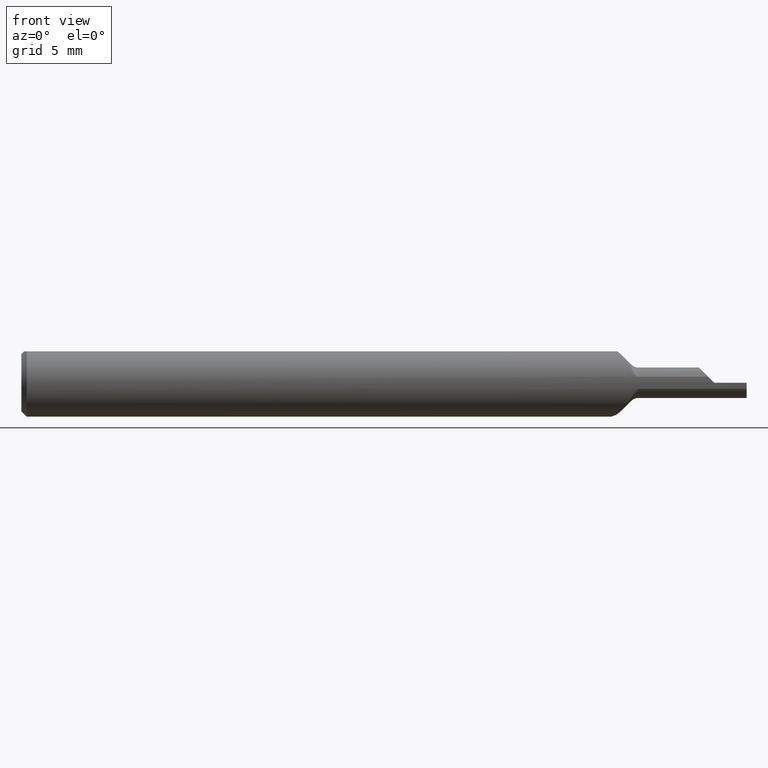
[diagram: clean part render]
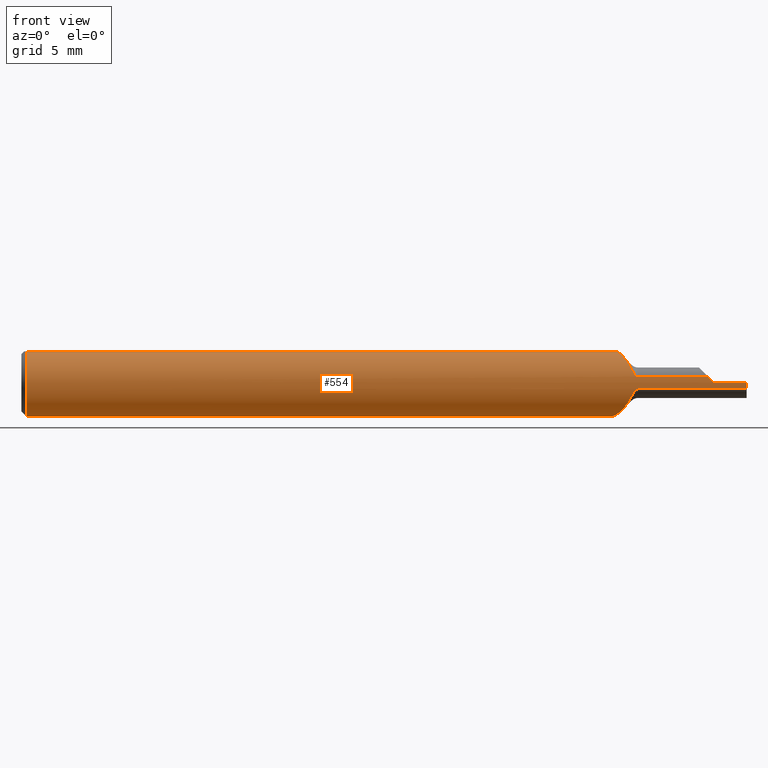
[diagram: same view with one face highlighted and labeled with its STEP entity id]
A machine part, front view. The second image highlights one B-rep face of the part: STEP entity #554.
In plain terms, the highlighted cylindrical surface (edge-blend (fillet) strip) has radius 2.3774 mm, axis along (-1, -0, -0).
Its self-contained STEP definition (entity closure, byte-faithful):
#1 = CARTESIAN_POINT ( 'NONE',  ( 1.893546287756235014, -0.09207014925373133152, 0.01685371224376497334 ) ) ;
#24 = DIRECTION ( 'NONE',  ( 0.000000000000000000, 0.000000000000000000, 1.000000000000000000 ) ) ;
#30 = B_SPLINE_CURVE_WITH_KNOTS ( 'NONE', 3,
 ( #691, #1008, #619, #616, #772, #695 ),
 .UNSPECIFIED., .F., .F.,
 ( 4, 2, 4 ),
 ( 0.0006012079309635458150, 0.001340060975339837663, 0.002078914019716129186 ),
 .UNSPECIFIED. ) ;
#34 = CARTESIAN_POINT ( 'NONE',  ( 1.684594016849698450, -0.08759575698325013093, -0.03327896902706448806 ) ) ;
#36 = VECTOR ( 'NONE', #503, 39.37007874015748143 ) ;
#57 = CARTESIAN_POINT ( 'NONE',  ( 1.910000000000000142, -0.09359914529524315796, 0.0004000000000000088012 ) ) ;
#61 = CARTESIAN_POINT ( 'NONE',  ( 1.643532016763719739, -0.03551619348969495271, 0.08659999999999998255 ) ) ;
#63 = VERTEX_POINT ( 'NONE', #367 ) ;
#64 = CARTESIAN_POINT ( 'NONE',  ( 1.592686412966955123, 0.07249166138048264429, 0.05959038732245774267 ) ) ;
#70 = CARTESIAN_POINT ( 'NONE',  ( 1.655266695626996576, -0.05360000000000007120, -0.07673330437300346363 ) ) ;
#73 = ORIENTED_EDGE ( 'NONE', *, *, #531, .T. ) ;
#78 = ORIENTED_EDGE ( 'NONE', *, *, #579, .F. ) ;
#84 = B_SPLINE_CURVE_WITH_KNOTS ( 'NONE', 3,
 ( #754, #34, #105, #353, #431, #749, #348, #673, #679, #687 ),
 .UNSPECIFIED., .F., .F.,
 ( 4, 2, 2, 2, 4 ),
 ( 4.336808689942017736E-19, 0.0003644527873160435501, 0.0005466791809740589826, 0.0006377923778030668072, 0.0007289055746320745235 ),
 .UNSPECIFIED. ) ;
#85 = DIRECTION ( 'NONE',  ( 1.000000000000000000, -0.000000000000000000, -0.000000000000000000 ) ) ;
#88 = ORIENTED_EDGE ( 'NONE', *, *, #237, .T. ) ;
#91 = ORIENTED_EDGE ( 'NONE', *, *, #795, .T. ) ;
#105 = CARTESIAN_POINT ( 'NONE',  ( 1.686806040240315108, -0.08899355740419850891, -0.02927285501734320020 ) ) ;
#107 = EDGE_CURVE ( 'NONE', #352, #949, #30, .T. ) ;
#116 = AXIS2_PLACEMENT_3D ( 'NONE', #713, #85, #310 ) ;
#117 = CARTESIAN_POINT ( 'NONE',  ( 1.822500000000000009, -0.09207014925373130376, -0.01685371224376508437 ) ) ;
#127 = DIRECTION ( 'NONE',  ( 0.000000000000000000, 0.000000000000000000, -1.000000000000000000 ) ) ;
#130 = CARTESIAN_POINT ( 'NONE',  ( 1.588748490882201159, 0.08288450723913580453, -0.04401287222825069068 ) ) ;
#136 = CARTESIAN_POINT ( 'NONE',  ( 1.605145747846598248, 0.04152393587091608024, 0.08413611846597424115 ) ) ;
#163 = CARTESIAN_POINT ( 'NONE',  ( 1.700355339059327342, -0.09207014925373130376, 0.01685371224376508437 ) ) ;
#165 = ORIENTED_EDGE ( 'NONE', *, *, #232, .T. ) ;
#173 = LINE ( 'NONE', #1018, #36 ) ;
#177 = CARTESIAN_POINT ( 'NONE',  ( 1.647441566857823281, -0.04196899222461395601, 0.08395359297438403923 ) ) ;
#182 = CARTESIAN_POINT ( 'NONE',  ( 1.697900363525313594, -0.09207014925373133152, 0.01685371224376509131 ) ) ;
#195 = CARTESIAN_POINT ( 'NONE',  ( 1.587619877663365875, 0.08592338530824539244, -0.03774812721615193600 ) ) ;
#198 = VERTEX_POINT ( 'NONE', #1 ) ;
#200 = CARTESIAN_POINT ( 'NONE',  ( 1.588468871594833187, 0.08363337984157995231, 0.04257809132454690171 ) ) ;
#202 = B_SPLINE_CURVE_WITH_KNOTS ( 'NONE', 3,
 ( #693, #854, #282, #1003, #547, #708, #935, #765, #277, #612, #468, #212, #780, #130, #195, #784, #289, #930, #605, #849, #447, #703, #200, #622, #64, #384, #939, #923, #136, #845 ),
 .UNSPECIFIED., .F., .F.,
 ( 4, 2, 2, 2, 2, 2, 2, 2, 2, 2, 2, 2, 2, 2, 4 ),
 ( 0.002058782231661807245, 0.003113147971076603814, 0.004167513710491399515, 0.004694696580198798666, 0.005221879449906196083, 0.005749062319613593500, 0.006276245189320990917, 0.006803428059028388333, 0.007330610928735785750, 0.007857793798443183167, 0.008384976668150578849, 0.008912159537857976266, 0.009439342407565375417, 0.009966525277272771099, 0.01049370814698016852 ),
 .UNSPECIFIED. ) ;
#212 = CARTESIAN_POINT ( 'NONE',  ( 1.593061454468120752, 0.07151733861755629751, -0.06075228721337560395 ) ) ;
#225 = VERTEX_POINT ( 'NONE', #163 ) ;
#232 = EDGE_CURVE ( 'NONE', #63, #567, #701, .T. ) ;
#237 = EDGE_CURVE ( 'NONE', #897, #1019, #173, .T. ) ;
#245 = CARTESIAN_POINT ( 'NONE',  ( 1.660085428403860419, -0.06049845688170251562, -0.07191457159613975914 ) ) ;
#255 = VERTEX_POINT ( 'NONE', #327 ) ;
#259 = EDGE_CURVE ( 'NONE', #455, #198, #676, .T. ) ;
#264 = CARTESIAN_POINT ( 'NONE',  ( 1.700355339059327342, -0.09207014925373130376, 0.01685371224376508437 ) ) ;
#273 = EDGE_CURVE ( 'NONE', #225, #949, #965, .T. ) ;
#277 = CARTESIAN_POINT ( 'NONE',  ( 1.603233516757745392, 0.04610023755995056038, -0.08171951638444602262 ) ) ;
#282 = CARTESIAN_POINT ( 'NONE',  ( 1.641505337636526507, -0.03252922832486425386, -0.08859576026076432242 ) ) ;
#289 = CARTESIAN_POINT ( 'NONE',  ( 1.585347330751994743, 0.09209881956665141867, -0.01808940311156598604 ) ) ;
#301 = LINE ( 'NONE', #628, #609 ) ;
#307 = EDGE_CURVE ( 'NONE', #897, #352, #433, .T. ) ;
#308 = VERTEX_POINT ( 'NONE', #606 ) ;
#310 = DIRECTION ( 'NONE',  ( 0.000000000000000000, 0.000000000000000000, -1.000000000000000000 ) ) ;
#322 = CARTESIAN_POINT ( 'NONE',  ( 1.682677669529663911, -0.08583234810611023446, -0.03733320262971877995 ) ) ;
#327 = CARTESIAN_POINT ( 'NONE',  ( 1.682677669529663911, -0.08583234810611023446, -0.03733320262971877995 ) ) ;
#339 = EDGE_CURVE ( 'NONE', #1019, #742, #843, .T. ) ;
#344 = CARTESIAN_POINT ( 'NONE',  ( 1.651348737428021352, -0.04799108434696518904, 0.08065126257197871573 ) ) ;
#348 = CARTESIAN_POINT ( 'NONE',  ( 1.695854291740993336, -0.09176656375261060816, -0.01844507552722184779 ) ) ;
#350 = CARTESIAN_POINT ( 'NONE',  ( 0.01499999999999997689, 0.000000000000000000, 0.000000000000000000 ) ) ;
#352 = VERTEX_POINT ( 'NONE', #985 ) ;
#353 = CARTESIAN_POINT ( 'NONE',  ( 1.690863312650912276, -0.09061429882484307863, -0.02353629481380503652 ) ) ;
#359 = DIRECTION ( 'NONE',  ( -1.000000000000000000, -0.000000000000000000, -0.000000000000000000 ) ) ;
#363 = ORIENTED_EDGE ( 'NONE', *, *, #107, .F. ) ;
#365 = DIRECTION ( 'NONE',  ( 1.000000000000000000, 0.000000000000000000, 0.000000000000000000 ) ) ;
#367 = CARTESIAN_POINT ( 'NONE',  ( 2.000000000000000000, -0.09359999999999989162, -6.429183357567480113E-17 ) ) ;
#384 = CARTESIAN_POINT ( 'NONE',  ( 1.596291649173444460, 0.06324241653019845033, 0.06932857983807230728 ) ) ;
#385 = EDGE_CURVE ( 'NONE', #715, #308, #522, .T. ) ;
#387 = CARTESIAN_POINT ( 'NONE',  ( 1.607737149790860132, 0.03551619348973097251, 0.08659999999999998255 ) ) ;
#391 = CARTESIAN_POINT ( 'NONE',  ( 2.000000000000000000, 0.000000000000000000, 0.000000000000000000 ) ) ;
#399 = CARTESIAN_POINT ( 'NONE',  ( 1.655266695626996576, -0.05360000000000007120, -0.07673330437300346363 ) ) ;
#401 = CARTESIAN_POINT ( 'NONE',  ( 2.000000000000000000, -0.09360000000000001652, -6.429183357567480113E-17 ) ) ;
#402 = CIRCLE ( 'NONE', #823, 0.09360000000000001652 ) ;
#409 = DIRECTION ( 'NONE',  ( 1.000000000000000000, 0.000000000000000000, 0.000000000000000000 ) ) ;
#415 = CARTESIAN_POINT ( 'NONE',  ( 1.910000000000000142, -0.09359914529524315796, 0.0004000000000000088012 ) ) ;
#421 = CARTESIAN_POINT ( 'NONE',  ( 1.692332920637297455, -0.09107359152556034065, 0.02166472413359333063 ) ) ;
#425 = AXIS2_PLACEMENT_3D ( 'NONE', #350, #824, #979 ) ;
#426 = CARTESIAN_POINT ( 'NONE',  ( 0.01499999999999997689, 0.03551619348973089618, 0.08659999999999998255 ) ) ;
#428 = CARTESIAN_POINT ( 'NONE',  ( 1.682677669529666131, -0.08583234810610713972, 0.03733320262972479597 ) ) ;
#431 = CARTESIAN_POINT ( 'NONE',  ( 1.692339807999357459, -0.09107598363432312105, -0.02165504116196197495 ) ) ;
#433 = B_SPLINE_CURVE_WITH_KNOTS ( 'NONE', 3,
 ( #750, #177, #344, #587 ),
 .UNSPECIFIED., .F., .F.,
 ( 4, 4 ),
 ( 5.958275938029966699E-07, 0.0006012079309635458150 ),
 .UNSPECIFIED. ) ;
#443 = DIRECTION ( 'NONE',  ( -1.000000000000000000, -0.000000000000000000, -0.000000000000000000 ) ) ;
#447 = CARTESIAN_POINT ( 'NONE',  ( 1.585777751289731530, 0.09091771725228045553, 0.02327984984785655409 ) ) ;
#452 = EDGE_CURVE ( 'NONE', #63, #715, #460, .T. ) ;
#455 = VERTEX_POINT ( 'NONE', #57 ) ;
#460 = CIRCLE ( 'NONE', #909, 0.09360000000000001652 ) ;
#468 = CARTESIAN_POINT ( 'NONE',  ( 1.596716989839071399, 0.06216634424897091865, -0.07029164792002763618 ) ) ;
#470 = VERTEX_POINT ( 'NONE', #387 ) ;
#473 = CARTESIAN_POINT ( 'NONE',  ( 1.664973166025442763, -0.06681938926357956776, -0.06609723623005306359 ) ) ;
#483 = ORIENTED_EDGE ( 'NONE', *, *, #385, .F. ) ;
#485 = CARTESIAN_POINT ( 'NONE',  ( 1.910000000000000142, -0.09359999999999998876, -6.429183357567478880E-17 ) ) ;
#490 = LINE ( 'NONE', #956, #707 ) ;
#503 = DIRECTION ( 'NONE',  ( -1.000000000000000000, -0.000000000000000000, -0.000000000000000000 ) ) ;
#522 = LINE ( 'NONE', #117, #1041 ) ;
#531 = EDGE_CURVE ( 'NONE', #727, #470, #301, .T. ) ;
#532 = ORIENTED_EDGE ( 'NONE', *, *, #273, .T. ) ;
#547 = CARTESIAN_POINT ( 'NONE',  ( 1.622144613202565422, 0.003747197657370836439, -0.09435565053858832596 ) ) ;
#549 = ORIENTED_EDGE ( 'NONE', *, *, #821, .T. ) ;
#554 = ADVANCED_FACE ( 'NONE', ( #570 ), #717, .T. ) ;
#556 = CIRCLE ( 'NONE', #116, 0.09360000000000001652 ) ;
#561 = CARTESIAN_POINT ( 'NONE',  ( 0.01499999999999997689, -0.03551619348973089618, 0.08659999999999998255 ) ) ;
#567 = VERTEX_POINT ( 'NONE', #485 ) ;
#569 = EDGE_CURVE ( 'NONE', #742, #727, #556, .T. ) ;
#570 = FACE_OUTER_BOUND ( 'NONE', #885, .T. ) ;
#579 = EDGE_CURVE ( 'NONE', #255, #922, #1007, .T. ) ;
#580 = VECTOR ( 'NONE', #957, 39.37007874015748143 ) ;
#587 = CARTESIAN_POINT ( 'NONE',  ( 1.655266695626996576, -0.05360000000000007120, 0.07673330437300346363 ) ) ;
#596 = CARTESIAN_POINT ( 'NONE',  ( 1.910000000000000142, 0.000000000000000000, 0.000000000000000000 ) ) ;
#598 = CARTESIAN_POINT ( 'NONE',  ( 1.893546287756235014, -0.09207014925373133152, 0.01685371224376497334 ) ) ;
#605 = CARTESIAN_POINT ( 'NONE',  ( 1.584720111197745140, 0.09381884038610417698, 0.002633421613979642674 ) ) ;
#606 = CARTESIAN_POINT ( 'NONE',  ( 1.700355339059327342, -0.09207014925373130376, -0.01685371224376508437 ) ) ;
#609 = VECTOR ( 'NONE', #943, 39.37007874015748143 ) ;
#612 = CARTESIAN_POINT ( 'NONE',  ( 1.598787511741458056, 0.05696553440187637068, -0.07455359918542001085 ) ) ;
#616 = CARTESIAN_POINT ( 'NONE',  ( 1.674310424756260574, -0.07768217733058858931, 0.05290665824840045522 ) ) ;
#619 = CARTESIAN_POINT ( 'NONE',  ( 1.664994524017805899, -0.06684592061606128843, 0.06607009958237755609 ) ) ;
#622 = CARTESIAN_POINT ( 'NONE',  ( 1.591127068158568081, 0.07658112335221455014, 0.05424728224234229290 ) ) ;
#625 = ORIENTED_EDGE ( 'NONE', *, *, #569, .T. ) ;
#628 = CARTESIAN_POINT ( 'NONE',  ( 2.000000000000000000, 0.03551619348973089618, 0.08659999999999998255 ) ) ;
#633 = EDGE_CURVE ( 'NONE', #225, #198, #490, .T. ) ;
#642 = DIRECTION ( 'NONE',  ( 0.000000000000000000, 0.000000000000000000, 1.000000000000000000 ) ) ;
#672 = ORIENTED_EDGE ( 'NONE', *, *, #307, .F. ) ;
#673 = CARTESIAN_POINT ( 'NONE',  ( 1.697943722477580408, -0.09199641880623858625, -0.01726215400794502836 ) ) ;
#676 =( BOUNDED_CURVE ( )  B_SPLINE_CURVE ( 3, ( #415, #734, #1000, #598 ),
 .UNSPECIFIED., .F., .F. ) 
 B_SPLINE_CURVE_WITH_KNOTS ( ( 4, 4 ),
 ( 4.716662497666021636, 4.893437473578364560 ),
 .UNSPECIFIED. ) 
 CURVE ( )  GEOMETRIC_REPRESENTATION_ITEM ( )  RATIONAL_B_SPLINE_CURVE ( ( 1.000000000000000000, 0.9973975789045512741, 0.9973975789045512741, 1.000000000000000000 ) ) 
 REPRESENTATION_ITEM ( '' )  );
#679 = CARTESIAN_POINT ( 'NONE',  ( 1.699129694698308990, -0.09207014925373525893, -0.01685371224381187333 ) ) ;
#687 = CARTESIAN_POINT ( 'NONE',  ( 1.700355339059327342, -0.09207014925373130376, -0.01685371224376508437 ) ) ;
#691 = CARTESIAN_POINT ( 'NONE',  ( 1.655266695626996576, -0.05360000000000007120, 0.07673330437300346363 ) ) ;
#693 = CARTESIAN_POINT ( 'NONE',  ( 1.655266695626996576, -0.05360000000000007120, -0.07673330437300346363 ) ) ;
#695 = CARTESIAN_POINT ( 'NONE',  ( 1.682677669529666131, -0.08583234810610713972, 0.03733320262972479597 ) ) ;
#701 = LINE ( 'NONE', #401, #580 ) ;
#703 = CARTESIAN_POINT ( 'NONE',  ( 1.587386139853655509, 0.08655412143640968392, 0.03628176927432850973 ) ) ;
#707 = VECTOR ( 'NONE', #409, 39.37007874015748143 ) ;
#708 = CARTESIAN_POINT ( 'NONE',  ( 1.613581935819068613, 0.02220868768165350574, -0.09114138336216801028 ) ) ;
#713 = CARTESIAN_POINT ( 'NONE',  ( 0.01499999999999997689, 0.000000000000000000, 0.000000000000000000 ) ) ;
#715 = VERTEX_POINT ( 'NONE', #743 ) ;
#717 = CYLINDRICAL_SURFACE ( 'NONE', #756, 0.09360000000000001652 ) ;
#727 = VERTEX_POINT ( 'NONE', #426 ) ;
#734 = CARTESIAN_POINT ( 'NONE',  ( 1.904477477659879625, -0.09357554455691269313, 0.005922522340120369745 ) ) ;
#742 = VERTEX_POINT ( 'NONE', #919 ) ;
#743 = CARTESIAN_POINT ( 'NONE',  ( 2.000000000000000000, -0.09207014925373137315, -0.01685371224376502886 ) ) ;
#749 = CARTESIAN_POINT ( 'NONE',  ( 1.694934352833174396, -0.09161422343003015889, -0.01919630084115139454 ) ) ;
#750 = CARTESIAN_POINT ( 'NONE',  ( 1.643532016763719739, -0.03551619348969495271, 0.08659999999999998255 ) ) ;
#754 = CARTESIAN_POINT ( 'NONE',  ( 1.682677669529663911, -0.08583234810611023446, -0.03733320262971877995 ) ) ;
#756 = AXIS2_PLACEMENT_3D ( 'NONE', #391, #1033, #642 ) ;
#765 = CARTESIAN_POINT ( 'NONE',  ( 1.605632438950439722, 0.04037388648616935943, -0.08469102550447793476 ) ) ;
#772 = CARTESIAN_POINT ( 'NONE',  ( 1.678765213081543139, -0.08223213411571288212, 0.04561041429958455351 ) ) ;
#780 = CARTESIAN_POINT ( 'NONE',  ( 1.591472964036102500, 0.07567231481629736745, -0.05550383079029641564 ) ) ;
#784 = CARTESIAN_POINT ( 'NONE',  ( 1.585931303237886114, 0.09049842679929974432, -0.02485526097243349886 ) ) ;
#788 = ORIENTED_EDGE ( 'NONE', *, *, #339, .T. ) ;
#793 = ORIENTED_EDGE ( 'NONE', *, *, #881, .F. ) ;
#795 = EDGE_CURVE ( 'NONE', #567, #455, #402, .T. ) ;
#796 = CARTESIAN_POINT ( 'NONE',  ( 1.678778077315621786, -0.08224397169042801936, -0.04558319866411766202 ) ) ;
#821 = EDGE_CURVE ( 'NONE', #255, #308, #84, .T. ) ;
#823 = AXIS2_PLACEMENT_3D ( 'NONE', #596, #359, #24 ) ;
#824 = DIRECTION ( 'NONE',  ( 1.000000000000000000, -0.000000000000000000, -0.000000000000000000 ) ) ;
#832 = CARTESIAN_POINT ( 'NONE',  ( 1.686805912684775643, -0.08899417778952072033, 0.02927180470252433234 ) ) ;
#843 = CIRCLE ( 'NONE', #425, 0.09360000000000001652 ) ;
#845 = CARTESIAN_POINT ( 'NONE',  ( 1.607737149790860132, 0.03551619348973097251, 0.08659999999999998255 ) ) ;
#849 = CARTESIAN_POINT ( 'NONE',  ( 1.585233750037414291, 0.09240994563307741716, 0.01641071810987997440 ) ) ;
#854 = CARTESIAN_POINT ( 'NONE',  ( 1.648415851863906267, -0.04379239030438169394, -0.08358414813609432725 ) ) ;
#881 = EDGE_CURVE ( 'NONE', #922, #470, #202, .T. ) ;
#885 = EDGE_LOOP ( 'NONE', ( #483, #914, #165, #91, #993, #929, #532, #363, #672, #88, #788, #625, #73, #793, #78, #549 ) ) ;
#891 = CARTESIAN_POINT ( 'NONE',  ( 1.674293037635855130, -0.07766363336204978873, -0.05293425612790189638 ) ) ;
#897 = VERTEX_POINT ( 'NONE', #61 ) ;
#904 = CARTESIAN_POINT ( 'NONE',  ( 1.695775560797225801, -0.09178968731684208904, 0.01839599541817948589 ) ) ;
#909 = AXIS2_PLACEMENT_3D ( 'NONE', #931, #365, #127 ) ;
#914 = ORIENTED_EDGE ( 'NONE', *, *, #452, .F. ) ;
#917 = CARTESIAN_POINT ( 'NONE',  ( 1.690870862056347956, -0.09061697795601747485, 0.02352623777535473026 ) ) ;
#919 = CARTESIAN_POINT ( 'NONE',  ( 0.01499999999999997689, 0.000000000000000000, -0.09360000000000001652 ) ) ;
#922 = VERTEX_POINT ( 'NONE', #399 ) ;
#923 = CARTESIAN_POINT ( 'NONE',  ( 1.602732928719614147, 0.04730590892803967357, 0.08103057034043389950 ) ) ;
#929 = ORIENTED_EDGE ( 'NONE', *, *, #633, .F. ) ;
#930 = CARTESIAN_POINT ( 'NONE',  ( 1.584740898497718931, 0.09376148353768069821, -0.004266529657294735808 ) ) ;
#931 = CARTESIAN_POINT ( 'NONE',  ( 2.000000000000000000, 0.000000000000000000, 0.000000000000000000 ) ) ;
#935 = CARTESIAN_POINT ( 'NONE',  ( 1.610832382910494021, 0.02836671247063497422, -0.08943125926993614194 ) ) ;
#939 = CARTESIAN_POINT ( 'NONE',  ( 1.598322812928604453, 0.05812320954289580677, 0.07365795857635897004 ) ) ;
#943 = DIRECTION ( 'NONE',  ( 1.000000000000000000, 0.000000000000000000, 0.000000000000000000 ) ) ;
#949 = VERTEX_POINT ( 'NONE', #1028 ) ;
#956 = CARTESIAN_POINT ( 'NONE',  ( 1.822500000000000009, -0.09207014925373130376, 0.01685371224376508437 ) ) ;
#957 = DIRECTION ( 'NONE',  ( -1.000000000000000000, -0.000000000000000000, -0.000000000000000000 ) ) ;
#965 = B_SPLINE_CURVE_WITH_KNOTS ( 'NONE', 3,
 ( #264, #182, #904, #421, #917, #832, #991, #428 ),
 .UNSPECIFIED., .F., .F.,
 ( 4, 2, 2, 4 ),
 ( 0.000000000000000000, 0.0001839824990601287408, 0.0003679649981202574817, 0.0007359299962405260222 ),
 .UNSPECIFIED. ) ;
#979 = DIRECTION ( 'NONE',  ( 0.000000000000000000, 0.000000000000000000, -1.000000000000000000 ) ) ;
#985 = CARTESIAN_POINT ( 'NONE',  ( 1.655266695626996576, -0.05360000000000007120, 0.07673330437300346363 ) ) ;
#991 = CARTESIAN_POINT ( 'NONE',  ( 1.684593424473237233, -0.08759521188273473868, 0.03328022226155506053 ) ) ;
#993 = ORIENTED_EDGE ( 'NONE', *, *, #259, .T. ) ;
#1000 = CARTESIAN_POINT ( 'NONE',  ( 1.898978596507646222, -0.09306454938512742636, 0.01142140349235395112 ) ) ;
#1003 = CARTESIAN_POINT ( 'NONE',  ( 1.628467363452695160, -0.008931066812204169897, -0.09395528445590446698 ) ) ;
#1007 = B_SPLINE_CURVE_WITH_KNOTS ( 'NONE', 3,
 ( #322, #796, #891, #473, #245, #70 ),
 .UNSPECIFIED., .F., .F.,
 ( 4, 2, 4 ),
 ( 0.0005755469038638665871, 0.001317164567762836754, 0.002058782231661807245 ),
 .UNSPECIFIED. ) ;
#1008 = CARTESIAN_POINT ( 'NONE',  ( 1.660086437564947337, -0.06049990158813622898, 0.07191356243505279966 ) ) ;
#1018 = CARTESIAN_POINT ( 'NONE',  ( 2.000000000000000000, -0.03551619348973089618, 0.08659999999999998255 ) ) ;
#1019 = VERTEX_POINT ( 'NONE', #561 ) ;
#1028 = CARTESIAN_POINT ( 'NONE',  ( 1.682677669529666131, -0.08583234810610713972, 0.03733320262972479597 ) ) ;
#1033 = DIRECTION ( 'NONE',  ( -1.000000000000000000, -0.000000000000000000, -0.000000000000000000 ) ) ;
#1041 = VECTOR ( 'NONE', #443, 39.37007874015748143 ) ;